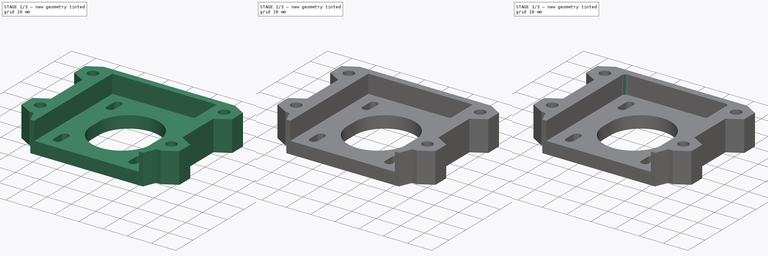
[diagram: build sequence overview — one tinted view per stage of 3, left to right]
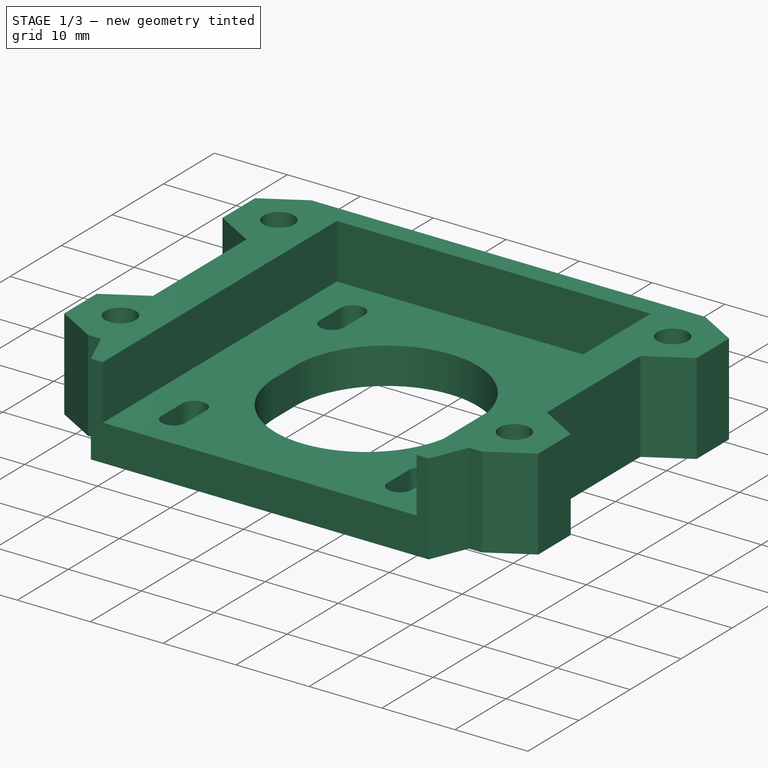
[diagram: stage 1 of 3 — iso view after this stage's code; geometry added in this stage tinted green]
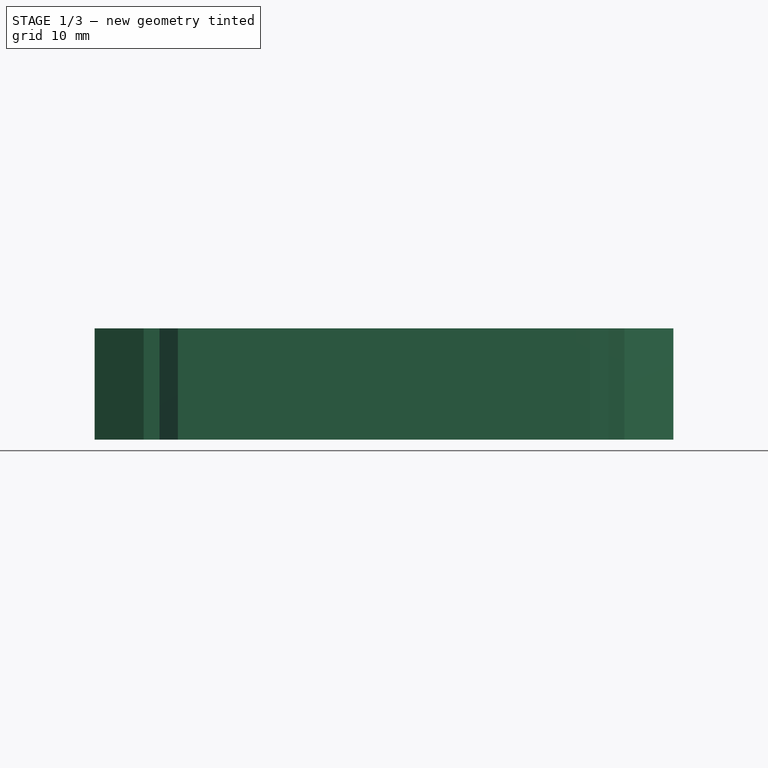
[diagram: stage 1 of 3 — front view after this stage's code; geometry added in this stage tinted green]
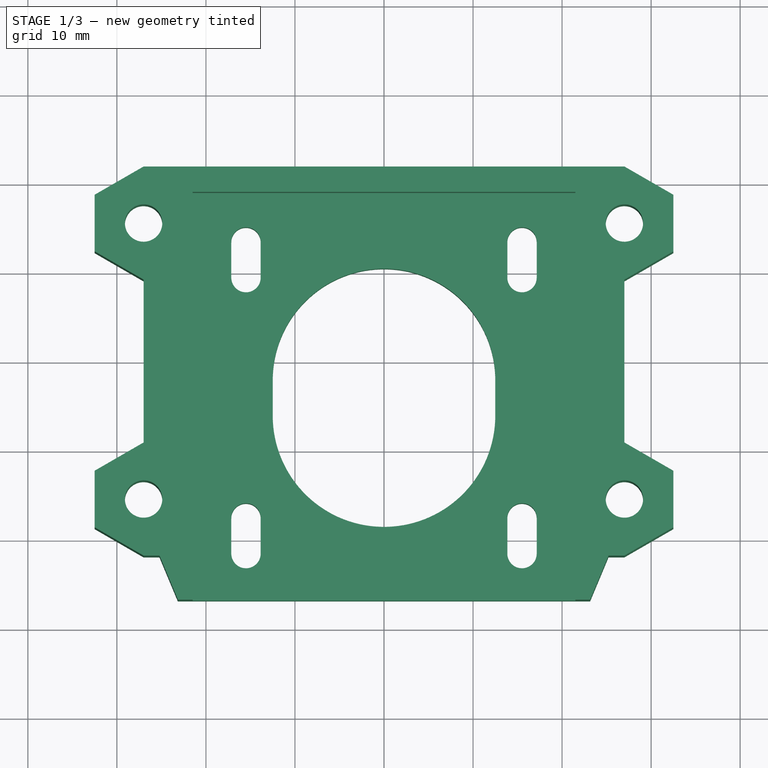
[diagram: stage 1 of 3 — top view after this stage's code; geometry added in this stage tinted green]
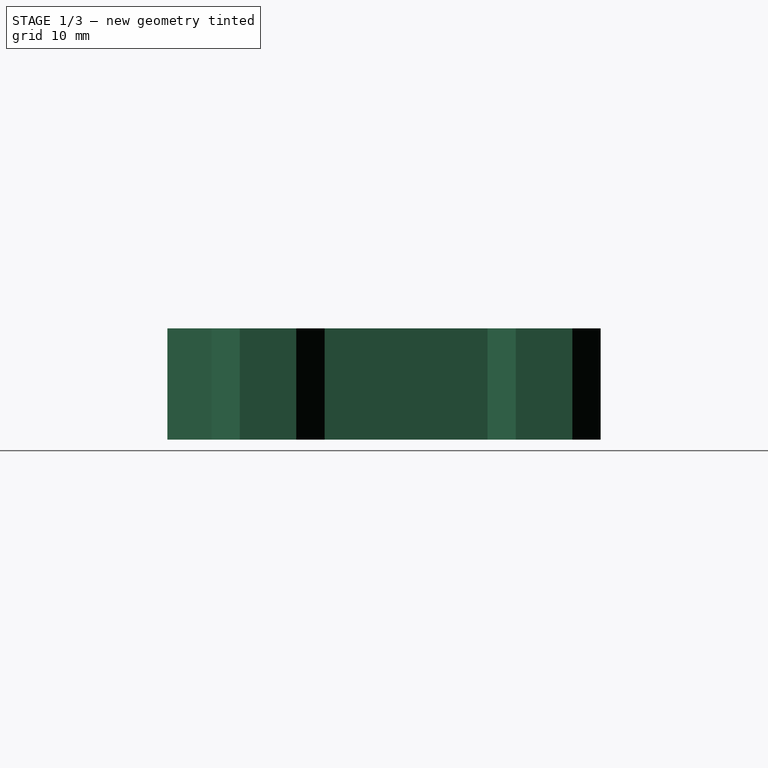
[diagram: stage 1 of 3 — right view after this stage's code; geometry added in this stage tinted green]
FCSTD DOCUMENT  (FreeCAD 0.19R24276 (Git))
Label: Base_motor_bracket
License: All rights reserved
LicenseURL: http://en.wikipedia.org/wiki/All_rights_reserved
objects: Sketcher::SketchObject×4, PartDesign::Pad×2, PartDesign::Pocket×2, PartDesign::Fillet×1, PartDesign::Body×1
note: 15 computed .brp shape members not serialized (recipe doc carries the construction recipe); baked Part::Feature solids carry a one-line shape summary decoded from their .brp

FEATURE [Sketcher::SketchObject] Sketch
  FullyConstrained = true
  MapMode = 5
  Support = -> [XY_Plane]
  sketch-geometry (68):
    g0: LineSegment StartX=-27 StartY=15.5 StartZ=0 EndX=27 EndY=15.5 EndZ=0
    g1: LineSegment StartX=27 StartY=15.5 StartZ=0 EndX=27 EndY=-15.5 EndZ=0
    g2: LineSegment StartX=27 StartY=-15.5 StartZ=0 EndX=-27 EndY=-15.5 EndZ=0
    g3: LineSegment StartX=-27 StartY=-15.5 StartZ=0 EndX=-27 EndY=15.5 EndZ=0
    g4: Circle CenterX=-27 CenterY=15.5 CenterZ=0 NormalX=0 NormalY=0 NormalZ=1 AngleXU=0 Radius=2.1
    g5: Circle CenterX=-27 CenterY=-15.5 CenterZ=0 NormalX=0 NormalY=0 NormalZ=1 AngleXU=0 Radius=2.1
    g6: Circle CenterX=27 CenterY=15.5 CenterZ=0 NormalX=0 NormalY=0 NormalZ=1 AngleXU=0 Radius=2.1
    g7: Circle CenterX=27 CenterY=-15.5 CenterZ=0 NormalX=0 NormalY=0 NormalZ=1 AngleXU=0 Radius=2.1
    g8: LineSegment StartX=-23.15 StartY=-26.8 StartZ=0 EndX=23.15 EndY=-26.8 EndZ=0
    g9: LineSegment StartX=27 StartY=21.8509 StartZ=0 EndX=-27 EndY=21.8509 EndZ=0
    g10: LineSegment StartX=-27 StartY=-21.8509 StartZ=0 EndX=-21.5 EndY=-18.6754 EndZ=0
    g11: LineSegment StartX=-21.5 StartY=-18.6754 StartZ=0 EndX=-21.5 EndY=-12.3246 EndZ=0
    g12: LineSegment StartX=-21.5 StartY=-12.3246 StartZ=0 EndX=-27 EndY=-9.14915 EndZ=0
    g13: LineSegment StartX=-27 StartY=-9.14915 StartZ=0 EndX=-32.5 EndY=-12.3246 EndZ=0
    g14: LineSegment StartX=-32.5 StartY=-12.3246 StartZ=0 EndX=-32.5 EndY=-18.6754 EndZ=0
    g15: LineSegment StartX=-32.5 StartY=-18.6754 StartZ=0 EndX=-27 EndY=-21.8509 EndZ=0
    g16: Circle CenterX=-27 CenterY=-15.5 CenterZ=0 NormalX=0 NormalY=0 NormalZ=1 AngleXU=0 Radius=6.35085
    g17: LineSegment StartX=-21.5 StartY=12.3246 StartZ=0 EndX=-21.5 EndY=18.6754 EndZ=0
    g18: LineSegment StartX=-21.5 StartY=18.6754 StartZ=0 EndX=-27 EndY=21.8509 EndZ=0
    g19: LineSegment StartX=-27 StartY=21.8509 StartZ=0 EndX=-32.5 EndY=18.6754 EndZ=0
    g20: LineSegment StartX=-32.5 StartY=18.6754 StartZ=0 EndX=-32.5 EndY=12.3246 EndZ=0
    g21: LineSegment StartX=-32.5 StartY=12.3246 StartZ=0 EndX=-27 EndY=9.14915 EndZ=0
    g22: LineSegment StartX=-27 StartY=9.14915 StartZ=0 EndX=-21.5 EndY=12.3246 EndZ=0
    g23: Circle CenterX=-27 CenterY=15.5 CenterZ=0 NormalX=0 NormalY=0 NormalZ=1 AngleXU=0 Radius=6.35085
    g24: LineSegment StartX=27 StartY=9.14915 StartZ=0 EndX=32.5 EndY=12.3246 EndZ=0
    g25: LineSegment StartX=32.5 StartY=12.3246 StartZ=0 EndX=32.5 EndY=18.6754 EndZ=0
    g26: LineSegment StartX=32.5 StartY=18.6754 StartZ=0 EndX=27 EndY=21.8509 EndZ=0
    g27: LineSegment StartX=27 StartY=21.8509 StartZ=0 EndX=21.5 EndY=18.6754 EndZ=0
    g28: LineSegment StartX=21.5 StartY=18.6754 StartZ=0 EndX=21.5 EndY=12.3246 EndZ=0
    g29: LineSegment StartX=21.5 StartY=12.3246 StartZ=0 EndX=27 EndY=9.14915 EndZ=0
    g30: Circle CenterX=27 CenterY=15.5 CenterZ=0 NormalX=0 NormalY=0 NormalZ=1 AngleXU=0 Radius=6.35085
    g31: LineSegment StartX=32.5 StartY=-12.3246 StartZ=0 EndX=27 EndY=-9.14915 EndZ=0
    g32: LineSegment StartX=27 StartY=-9.14915 StartZ=0 EndX=21.5 EndY=-12.3246 EndZ=0
    g33: LineSegment StartX=21.5 StartY=-12.3246 StartZ=0 EndX=21.5 EndY=-18.6754 EndZ=0
    g34: LineSegment StartX=21.5 StartY=-18.6754 StartZ=0 EndX=27 EndY=-21.8509 EndZ=0
    g35: LineSegment StartX=27 StartY=-21.8509 StartZ=0 EndX=32.5 EndY=-18.6754 EndZ=0
    g36: LineSegment StartX=32.5 StartY=-18.6754 StartZ=0 EndX=32.5 EndY=-12.3246 EndZ=0
    g37: Circle CenterX=27 CenterY=-15.5 CenterZ=0 NormalX=0 NormalY=0 NormalZ=1 AngleXU=0 Radius=6.35085
    g38: LineSegment StartX=-25.22 StartY=-21.8509 StartZ=0 EndX=-23.15 EndY=-26.8 EndZ=0
    g39: LineSegment StartX=23.15 StartY=-26.8 StartZ=0 EndX=25.22 EndY=-21.8509 EndZ=0
    g40: LineSegment StartX=-27 StartY=-9.14915 StartZ=0 EndX=-27 EndY=9.14915 EndZ=0
    g41: LineSegment StartX=27 StartY=-9.14915 StartZ=0 EndX=27 EndY=9.14915 EndZ=0
    g42: ArcOfCircle CenterX=0 CenterY=-2 CenterZ=0 NormalX=0 NormalY=0 NormalZ=1 AngleXU=0 Radius=12.5 StartAngle=1e-16 EndAngle=3.14159
    g43: ArcOfCircle CenterX=-4e-16 CenterY=-6 CenterZ=0 NormalX=0 NormalY=0 NormalZ=1 AngleXU=0 Radius=12.5 StartAngle=3.14159 EndAngle=6.28319
    g44: LineSegment StartX=-12.5 StartY=-2 StartZ=0 EndX=-12.5 EndY=-6 EndZ=0
    g45: LineSegment StartX=12.5 StartY=-2 StartZ=0 EndX=12.5 EndY=-6 EndZ=0
    g46: ArcOfCircle CenterX=-15.5 CenterY=13.5 CenterZ=0 NormalX=0 NormalY=0 NormalZ=1 AngleXU=0 Radius=1.65 StartAngle=-9e-16 EndAngle=3.14159
    g47: ArcOfCircle CenterX=-15.5 CenterY=9.5 CenterZ=0 NormalX=0 NormalY=0 NormalZ=1 AngleXU=0 Radius=1.65 StartAngle=3.14159 EndAngle=6.28319
    g48: LineSegment StartX=-17.15 StartY=13.5 StartZ=0 EndX=-17.15 EndY=9.5 EndZ=0
    g49: LineSegment StartX=-13.85 StartY=13.5 StartZ=0 EndX=-13.85 EndY=9.5 EndZ=0
    g50: ArcOfCircle CenterX=15.5 CenterY=13.5 CenterZ=0 NormalX=0 NormalY=0 NormalZ=1 AngleXU=0 Radius=1.65 StartAngle=0 EndAngle=3.14159
    g51: ArcOfCircle CenterX=15.5 CenterY=9.5 CenterZ=0 NormalX=0 NormalY=0 NormalZ=1 AngleXU=0 Radius=1.65 StartAngle=3.14159 EndAngle=6.28319
    g52: LineSegment StartX=13.85 StartY=13.5 StartZ=0 EndX=13.85 EndY=9.5 EndZ=0
    g53: LineSegment StartX=17.15 StartY=13.5 StartZ=0 EndX=17.15 EndY=9.5 EndZ=0
    g54: ArcOfCircle CenterX=-15.5 CenterY=-17.5 CenterZ=0 NormalX=0 NormalY=0 NormalZ=1 AngleXU=0 Radius=1.65 StartAngle=-9e-16 EndAngle=3.14159
    g55: ArcOfCircle CenterX=-15.5 CenterY=-21.5 CenterZ=0 NormalX=0 NormalY=0 NormalZ=1 AngleXU=0 Radius=1.65 StartAngle=3.14159 EndAngle=6.28319
    g56: LineSegment StartX=-17.15 StartY=-17.5 StartZ=0 EndX=-17.15 EndY=-21.5 EndZ=0
    g57: LineSegment StartX=-13.85 StartY=-17.5 StartZ=0 EndX=-13.85 EndY=-21.5 EndZ=0
    g58: ArcOfCircle CenterX=15.5 CenterY=-17.5 CenterZ=0 NormalX=0 NormalY=0 NormalZ=1 AngleXU=0 Radius=1.65 StartAngle=2e-16 EndAngle=3.14159
    g59: ArcOfCircle CenterX=15.5 CenterY=-21.5 CenterZ=0 NormalX=0 NormalY=0 NormalZ=1 AngleXU=0 Radius=1.65 StartAngle=3.14159 EndAngle=6.28319
    g60: LineSegment StartX=13.85 StartY=-17.5 StartZ=0 EndX=13.85 EndY=-21.5 EndZ=0
    g61: LineSegment StartX=17.15 StartY=-17.5 StartZ=0 EndX=17.15 EndY=-21.5 EndZ=0
    g62: LineSegment StartX=-15.5 StartY=13.5 StartZ=0 EndX=15.5 EndY=13.5 EndZ=0
    g63: LineSegment StartX=15.5 StartY=13.5 StartZ=0 EndX=15.5 EndY=-17.5 EndZ=0
    g64: LineSegment StartX=15.5 StartY=-17.5 StartZ=0 EndX=-15.5 EndY=-17.5 EndZ=0
    g65: LineSegment StartX=-15.5 StartY=-17.5 StartZ=0 EndX=-15.5 EndY=13.5 EndZ=0
    g66: LineSegment StartX=-27 StartY=-21.8509 StartZ=0 EndX=-25.22 EndY=-21.8509 EndZ=0
    g67: LineSegment StartX=27 StartY=-21.8509 StartZ=0 EndX=25.22 EndY=-21.8509 EndZ=0
  constraints (160):
    c: Coincident(g0,g1)
    c: Coincident(g1,g2)
    c: Coincident(g2,g3)
    c: Coincident(g3,g0)
    c: Horizontal(g0)
    c: Horizontal(g2)
    c: Vertical(g1)
    c: Vertical(g3)
    c: Symmetric(g0,g1,g-1)
    c: DistanceX(g2,g2) = 54
    c: Coincident(g4,g0)
    c: Coincident(g5,g2)
    c: Coincident(g6,g0)
    c: Coincident(g7,g1)
    c: Equal(g4,g5)
    c: Equal(g5,g7)
    c: Equal(g7,g6)
    c: Radius(g6) = 2.1
    c: Symmetric(g8,g8,g-2)
    c: Symmetric(g9,g9,g-2)
    c: DistanceX(g8,g8) = 46.3
    c: Coincident(g10,g11)
    c: Coincident(g11,g12)
    c: Coincident(g12,g13)
    c: Coincident(g13,g14)
    c: Coincident(g14,g15)
    c: Coincident(g15,g10)
    c: Equal(g10, g11-g15) x5
    c: PointOnObject(g10,g16)
    c: PointOnObject(g11,g16)
    c: PointOnObject(g12,g16)
    c: PointOnObject(g13,g16)
    c: PointOnObject(g14,g16)
    c: PointOnObject(g15,g16)
    c: Coincident(g16,g5)
    c: Coincident(g17,g18)
    c: Coincident(g18,g19)
    c: Coincident(g19,g20)
    c: Coincident(g20,g21)
    c: Coincident(g21,g22)
    c: Equal(g17, g18-g22) x5
    c: PointOnObject(g17,g23)
    c: PointOnObject(g18,g23)
    c: PointOnObject(g19,g23)
    c: PointOnObject(g20,g23)
    c: PointOnObject(g21,g23)
    c: PointOnObject(g22,g23)
    c: Coincident(g23,g4)
    c: Coincident(g24,g25)
    c: Coincident(g25,g26)
    c: Coincident(g26,g27)
    c: Coincident(g27,g28)
    c: Coincident(g28,g29)
    c: Coincident(g29,g24)
    c: Equal(g24, g25-g29) x5
    c: PointOnObject(g24,g30)
    c: PointOnObject(g25,g30)
    c: PointOnObject(g26,g30)
    c: PointOnObject(g27,g30)
    c: PointOnObject(g28,g30)
    c: PointOnObject(g29,g30)
    c: Coincident(g30,g6)
    c: Coincident(g31,g32)
    c: Coincident(g32,g33)
    c: Coincident(g33,g34)
    c: Coincident(g34,g35)
    c: Coincident(g35,g36)
    c: Coincident(g36,g31)
    c: Equal(g31, g32-g36) x5
    c: PointOnObject(g31,g37)
    c: PointOnObject(g32,g37)
    c: PointOnObject(g33,g37)
    c: PointOnObject(g34,g37)
    c: PointOnObject(g35,g37)
    c: PointOnObject(g36,g37)
    c: Coincident(g37,g7)
    c: Equal(g16,g37)
    c: Equal(g30,g37)
    c: Equal(g23,g16)
    c: Coincident(g17,g22)
    c: Vertical(g17)
    c: Vertical(g28)
    c: Vertical(g33)
    c: Vertical(g14)
    c: Coincident(g38,g8)
    c: DistanceX(g38,g8) = 2.07
    c: Coincident(g8,g39)
    c: Coincident(g40,g13)
    c: Coincident(g40,g21)
    c: Coincident(g41,g31)
    c: Coincident(g41,g24)
    c: Coincident(g9,g26)
    c: Tangent(g42,g45) = 1.5708
    c: Tangent(g42,g44) = -1.5708
    c: Tangent(g44,g43) = -1.5708
    c: Tangent(g45,g43) = 1.5708
    c: Vertical(g44)
    c: Equal(g42,g43)
    c: PointOnObject(g42,g-2)
    c: DistanceY(g8,g42) = 24.8
    c: DistanceY(g45,g45) = 4
    c: Tangent(g46,g49) = 1.5708
    c: Tangent(g46,g48) = -1.5708
    c: Tangent(g48,g47) = -1.5708
    c: Tangent(g49,g47) = 1.5708
    c: Vertical(g48)
    c: Equal(g46,g47)
    c: Tangent(g50,g53) = 1.5708
    c: Tangent(g50,g52) = -1.5708
    c: Tangent(g52,g51) = -1.5708
    c: Tangent(g53,g51) = 1.5708
    c: Vertical(g52)
    c: Equal(g50,g51)
    c: Tangent(g54,g57) = 1.5708
    c: Tangent(g54,g56) = -1.5708
    c: Tangent(g56,g55) = -1.5708
    c: Tangent(g57,g55) = 1.5708
    c: Vertical(g56)
    c: Equal(g54,g55)
    c: Tangent(g58,g61) = 1.5708
    c: Tangent(g58,g60) = -1.5708
    c: Tangent(g60,g59) = -1.5708
    c: Tangent(g61,g59) = 1.5708
    c: Vertical(g60)
    c: Equal(g58,g59)
    c: Coincident(g62,g63)
    c: Coincident(g63,g64)
    c: Coincident(g64,g65)
    c: Coincident(g65,g62)
    c: Horizontal(g62)
    c: Horizontal(g64)
    c: Vertical(g63)
    c: Vertical(g65)
    c: Coincident(g62,g46)
    c: Coincident(g63,g58)
    c: Coincident(g50,g62)
    c: Radius(g50) = 1.65
    c: DistanceY(g53,g53) = 4
    c: Equal(g46,g50)
    c: Equal(g50,g54)
    c: Equal(g54,g58)
    c: Coincident(g64,g54)
    c: Equal(g57,g60)
    c: Equal(g60,g49)
    c: Equal(g49,g52)
    c: DistanceX(g62,g62) = 31
    c: DistanceY(g63,g63) = 31
    c: Symmetric(g46,g58,g42)
    c: Radius(g42) = 12.5
    c: DistanceY(g8,g7) = 11.3
    c: Coincident(g66,g15)
    c: Coincident(g38,g66)
    c: Horizontal(g66)
    c: Coincident(g67,g35)
    c: Coincident(g67,g39)
    c: Horizontal(g67)
    c: Equal(g66,g67)
    c: DistanceX(g13,g11) = 11
    c: DistanceY(g7,g6) = 31
    c: DistanceY(g8,g9) = 48.6509
FEATURE [PartDesign::Pad] Pad
  Direction = (1,1,1)
  Length = 12.5
  Length2 = 100
  Profile = -> Sketch
  Type = 0
FEATURE [Sketcher::SketchObject] Sketch001
  ExternalGeometry = -> [Pad]
  FullyConstrained = true
  MapMode = 5
  Placement = pos=(0,0,12.5) rot=(0,0,1;0rad)
  Support = -> [Pad]
  sketch-geometry (4):
    g0: LineSegment StartX=-21.5 StartY=19 StartZ=0 EndX=21.5 EndY=19 EndZ=0
    g1: LineSegment StartX=21.5 StartY=19 StartZ=0 EndX=21.5 EndY=-26.8 EndZ=0
    g2: LineSegment StartX=21.5 StartY=-26.8 StartZ=0 EndX=-21.5 EndY=-26.8 EndZ=0
    g3: LineSegment StartX=-21.5 StartY=-26.8 StartZ=0 EndX=-21.5 EndY=19 EndZ=0
  constraints (11):
    c: Coincident(g0,g1)
    c: Coincident(g1,g2)
    c: Coincident(g2,g3)
    c: Coincident(g3,g0)
    c: Horizontal(g2)
    c: Vertical(g1)
    c: Vertical(g3)
    c: DistanceX(g0,g0) = 43
    c: DistanceY(g1,g1) = 45.8
    c: Symmetric(g0,g0,g-2)
    c: PointOnObject(g1,g-3)
FEATURE [PartDesign::Pocket] Pocket
  BaseFeature = -> Pad
  Length = 7.5
  Length2 = 100
  Profile = -> Sketch001
  Type = 0
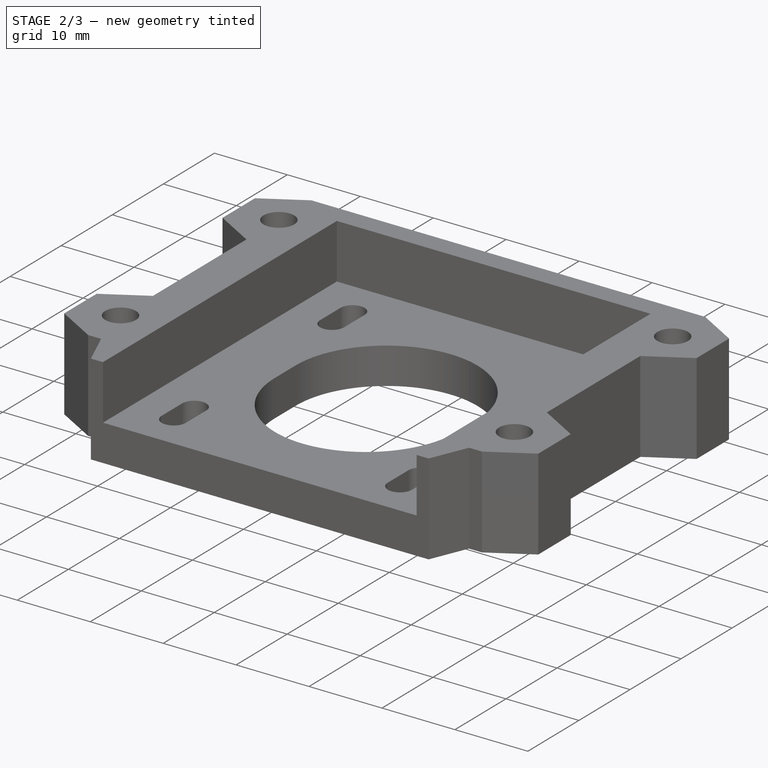
[diagram: stage 2 of 3 — iso view after this stage's code; geometry added in this stage tinted green]
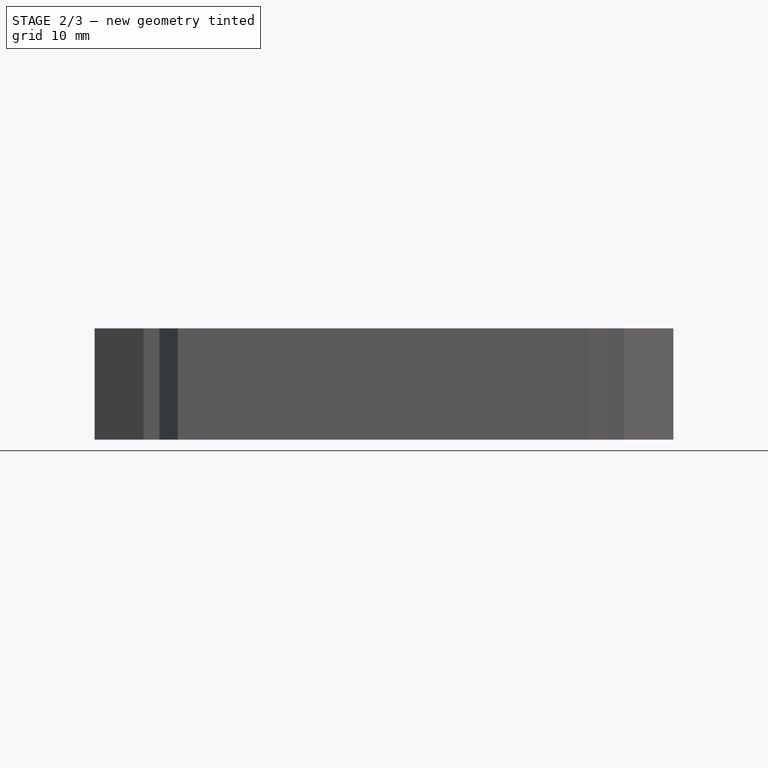
[diagram: stage 2 of 3 — front view after this stage's code; geometry added in this stage tinted green]
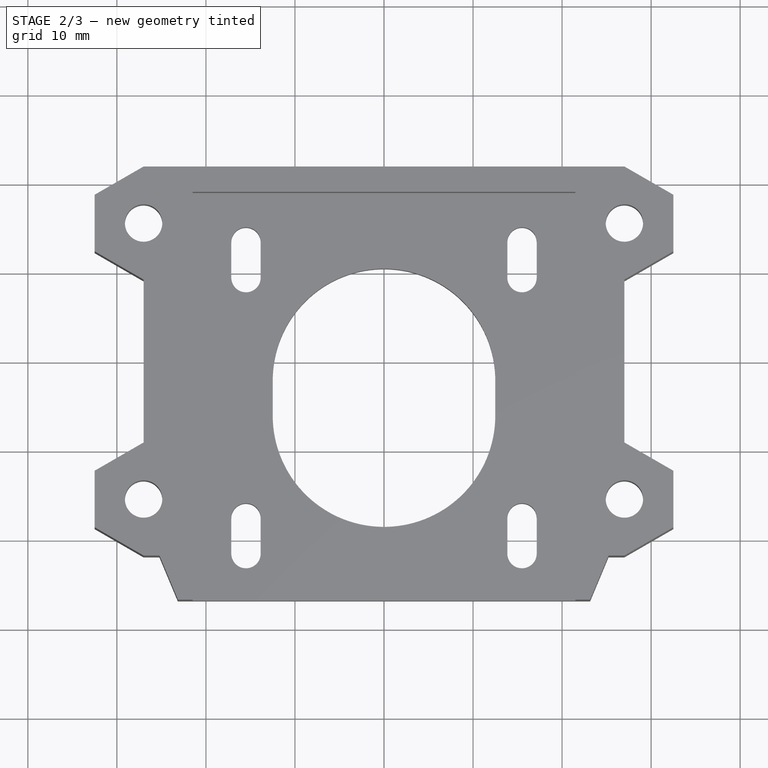
[diagram: stage 2 of 3 — top view after this stage's code; geometry added in this stage tinted green]
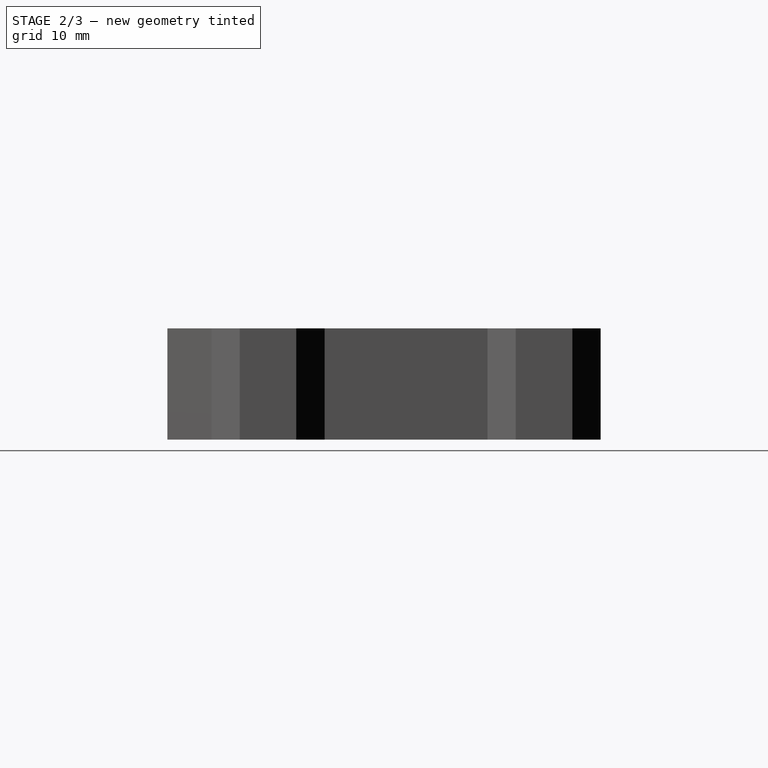
[diagram: stage 2 of 3 — right view after this stage's code; geometry added in this stage tinted green]
FEATURE [Sketcher::SketchObject] Sketch002
  ExternalGeometry = -> [Pocket]
  FullyConstrained = true
  MapMode = 5
  Placement = pos=(0,0,0) rot=(1,0,0;3.14159rad)
  Support = -> [Pocket]
  sketch-geometry (28):
    g0: LineSegment StartX=-23.5 StartY=13.4793 StartZ=0 EndX=-23.5 EndY=17.5207 EndZ=0
    g1: LineSegment StartX=-23.5 StartY=17.5207 StartZ=0 EndX=-27 EndY=19.5415 EndZ=0
    g2: LineSegment StartX=-27 StartY=19.5415 StartZ=0 EndX=-30.5 EndY=17.5207 EndZ=0
    g3: LineSegment StartX=-30.5 StartY=17.5207 StartZ=0 EndX=-30.5 EndY=13.4793 EndZ=0
    g4: LineSegment StartX=-30.5 StartY=13.4793 StartZ=0 EndX=-27 EndY=11.4585 EndZ=0
    g5: LineSegment StartX=-27 StartY=11.4585 StartZ=0 EndX=-23.5 EndY=13.4793 EndZ=0
    g6: Circle CenterX=-27 CenterY=15.5 CenterZ=0 NormalX=0 NormalY=0 NormalZ=1 AngleXU=0 Radius=4.04145
    g7: LineSegment StartX=-23.5 StartY=-17.5207 StartZ=0 EndX=-23.5 EndY=-13.4793 EndZ=0
    g8: LineSegment StartX=-23.5 StartY=-13.4793 StartZ=0 EndX=-27 EndY=-11.4585 EndZ=0
    g9: LineSegment StartX=-27 StartY=-11.4585 StartZ=0 EndX=-30.5 EndY=-13.4793 EndZ=0
    g10: LineSegment StartX=-30.5 StartY=-13.4793 StartZ=0 EndX=-30.5 EndY=-17.5207 EndZ=0
    g11: LineSegment StartX=-30.5 StartY=-17.5207 StartZ=0 EndX=-27 EndY=-19.5415 EndZ=0
    g12: LineSegment StartX=-27 StartY=-19.5415 StartZ=0 EndX=-23.5 EndY=-17.5207 EndZ=0
    g13: Circle CenterX=-27 CenterY=-15.5 CenterZ=0 NormalX=0 NormalY=0 NormalZ=1 AngleXU=0 Radius=4.04145
    g14: LineSegment StartX=30.5 StartY=-17.5207 StartZ=0 EndX=30.5 EndY=-13.4793 EndZ=0
    g15: LineSegment StartX=30.5 StartY=-13.4793 StartZ=0 EndX=27 EndY=-11.4585 EndZ=0
    g16: LineSegment StartX=27 StartY=-11.4585 StartZ=0 EndX=23.5 EndY=-13.4793 EndZ=0
    g17: LineSegment StartX=23.5 StartY=-13.4793 StartZ=0 EndX=23.5 EndY=-17.5207 EndZ=0
    g18: LineSegment StartX=23.5 StartY=-17.5207 StartZ=0 EndX=27 EndY=-19.5415 EndZ=0
    g19: LineSegment StartX=27 StartY=-19.5415 StartZ=0 EndX=30.5 EndY=-17.5207 EndZ=0
    g20: Circle CenterX=27 CenterY=-15.5 CenterZ=0 NormalX=0 NormalY=0 NormalZ=1 AngleXU=0 Radius=4.04145
    g21: LineSegment StartX=30.5 StartY=13.4793 StartZ=0 EndX=30.5 EndY=17.5207 EndZ=0
    g22: LineSegment StartX=30.5 StartY=17.5207 StartZ=0 EndX=27 EndY=19.5415 EndZ=0
    g23: LineSegment StartX=27 StartY=19.5415 StartZ=0 EndX=23.5 EndY=17.5207 EndZ=0
    g24: LineSegment StartX=23.5 StartY=17.5207 StartZ=0 EndX=23.5 EndY=13.4793 EndZ=0
    g25: LineSegment StartX=23.5 StartY=13.4793 StartZ=0 EndX=27 EndY=11.4585 EndZ=0
    g26: LineSegment StartX=27 StartY=11.4585 StartZ=0 EndX=30.5 EndY=13.4793 EndZ=0
    g27: Circle CenterX=27 CenterY=15.5 CenterZ=0 NormalX=0 NormalY=0 NormalZ=1 AngleXU=0 Radius=4.04145
  constraints (64):
    c: Coincident(g0,g1)
    c: Coincident(g1,g2)
    c: Coincident(g2,g3)
    c: Coincident(g3,g4)
    c: Coincident(g4,g5)
    c: Coincident(g5,g0)
    c: Equal(g0, g1-g5) x5
    c: PointOnObject(g0,g6)
    c: PointOnObject(g1,g6)
    c: PointOnObject(g2,g6)
    c: PointOnObject(g3,g6)
    c: PointOnObject(g4,g6)
    c: PointOnObject(g5,g6)
    c: Coincident(g6,g-3)
    c: Coincident(g7,g8)
    c: Coincident(g8,g9)
    c: Coincident(g9,g10)
    c: Coincident(g10,g11)
    c: Coincident(g11,g12)
    c: Coincident(g12,g7)
    c: Equal(g7, g8-g12) x5
    c: PointOnObject(g7,g13)
    c: PointOnObject(g8,g13)
    c: PointOnObject(g9,g13)
    c: PointOnObject(g10,g13)
    c: PointOnObject(g11,g13)
    c: PointOnObject(g12,g13)
    c: Coincident(g13,g-4)
    c: Coincident(g14,g15)
    c: Coincident(g15,g16)
    c: Coincident(g16,g17)
    c: Coincident(g17,g18)
    c: Coincident(g18,g19)
    c: Coincident(g19,g14)
    c: Equal(g14, g15-g19) x5
    c: PointOnObject(g14,g20)
    c: PointOnObject(g15,g20)
    c: PointOnObject(g16,g20)
    c: PointOnObject(g17,g20)
    c: PointOnObject(g18,g20)
    c: PointOnObject(g19,g20)
    c: Coincident(g20,g-5)
    c: Coincident(g21,g22)
    c: Coincident(g22,g23)
    c: Coincident(g23,g24)
    c: Coincident(g24,g25)
    c: Coincident(g25,g26)
    c: Coincident(g26,g21)
    c: Equal(g21, g22-g26) x5
    c: PointOnObject(g21,g27)
    c: PointOnObject(g22,g27)
    c: PointOnObject(g23,g27)
    c: PointOnObject(g24,g27)
    c: PointOnObject(g25,g27)
    c: PointOnObject(g26,g27)
    c: Coincident(g27,g-6)
    c: Equal(g27,g20)
    c: Equal(g20,g13)
    c: Equal(g13,g6)
    c: Vertical(g3)
    c: DistanceX(g2,g0) = 7
    c: Vertical(g10)
    c: Vertical(g17)
    c: Vertical(g24)
FEATURE [PartDesign::Pocket] Pocket001
  BaseFeature = -> Pocket
  Length = 4
  Length2 = 100
  Profile = -> Sketch002
  Type = 0
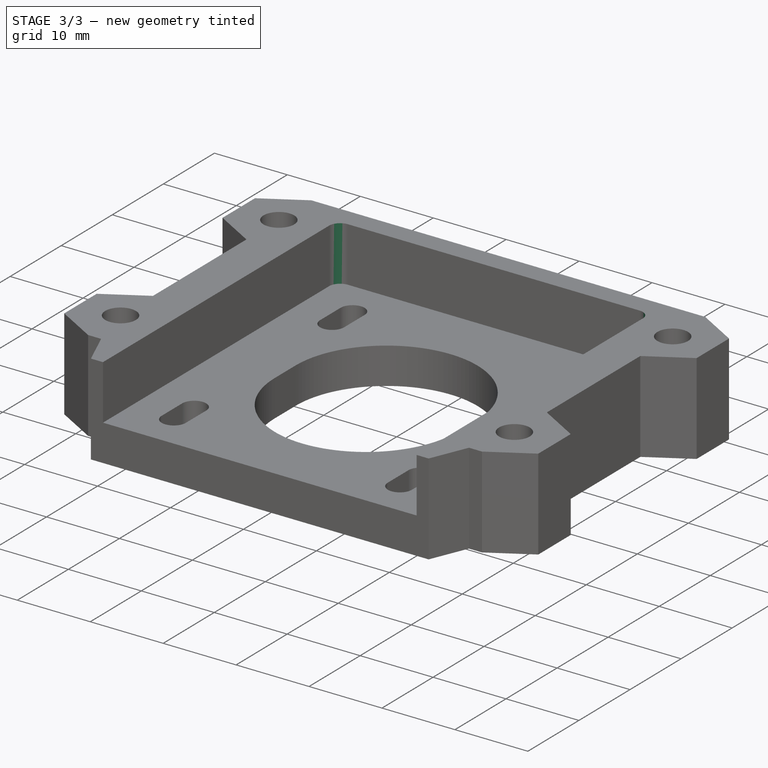
[diagram: stage 3 of 3 — iso view after this stage's code; geometry added in this stage tinted green]
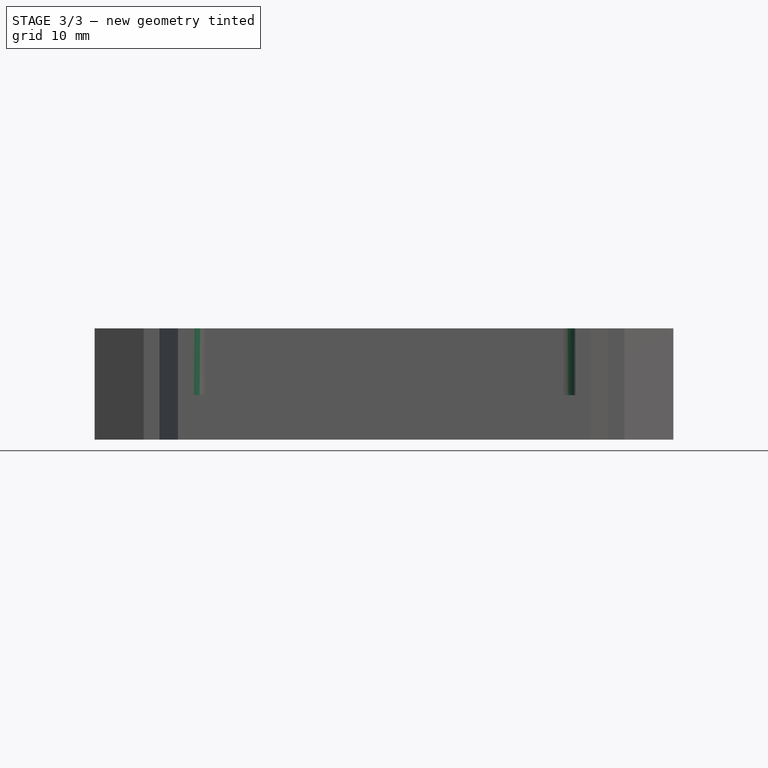
[diagram: stage 3 of 3 — front view after this stage's code; geometry added in this stage tinted green]
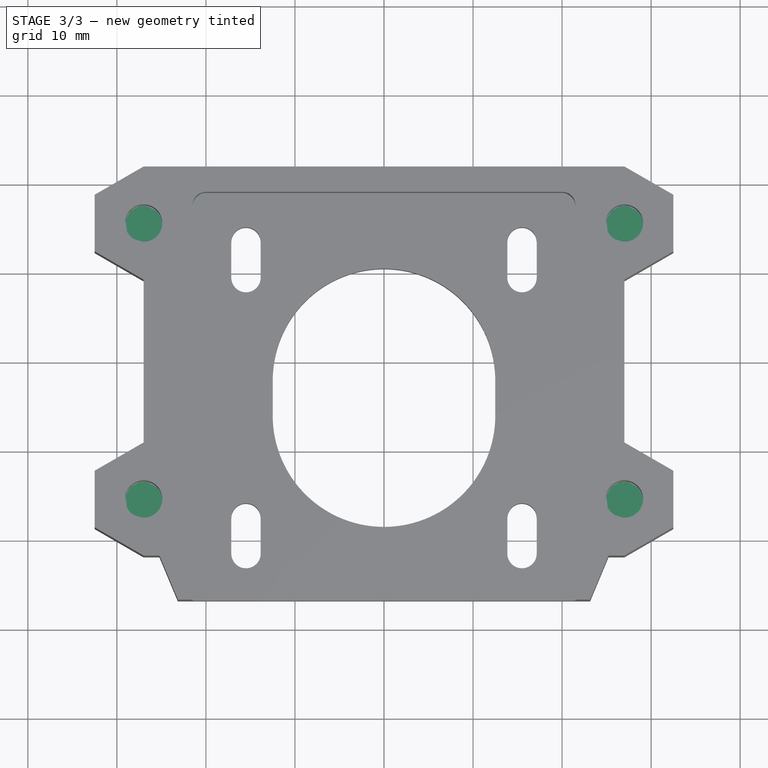
[diagram: stage 3 of 3 — top view after this stage's code; geometry added in this stage tinted green]
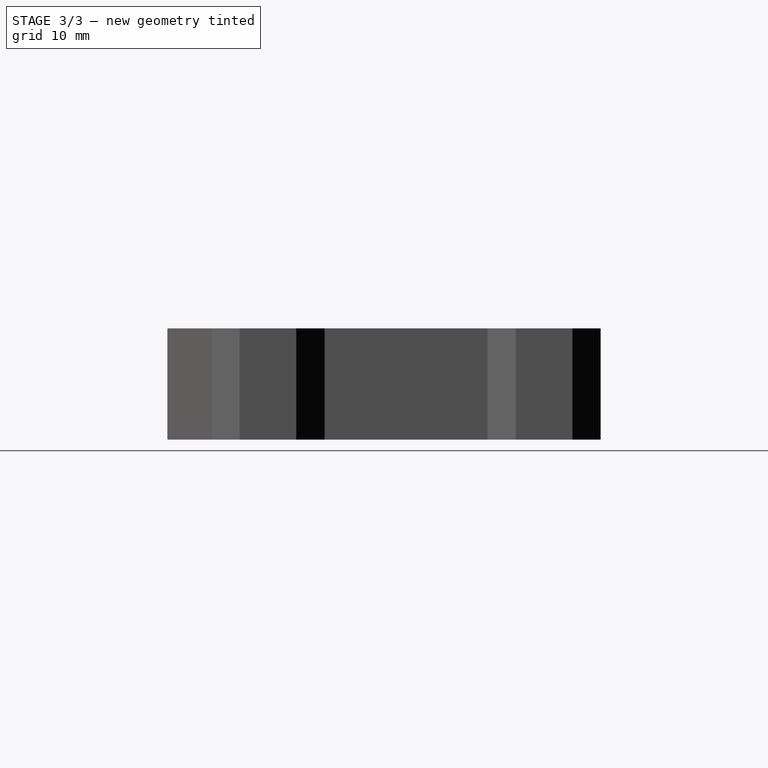
[diagram: stage 3 of 3 — right view after this stage's code; geometry added in this stage tinted green]
FEATURE [PartDesign::Fillet] Fillet
  Base = -> Pocket001 [Edge206,Edge204]
  BaseFeature = -> Pocket001
  Radius = 1.5
  SupportTransform = false
FEATURE [Sketcher::SketchObject] Sketch003
  ExternalGeometry = -> [Fillet]
  FullyConstrained = true
  MapMode = 5
  Placement = pos=(0,0,4) rot=(1,0,0;3.14159rad)
  Support = -> [Fillet]
  sketch-geometry (4):
    g0: Circle CenterX=-27 CenterY=15.5 CenterZ=0 NormalX=0 NormalY=0 NormalZ=1 AngleXU=0 Radius=2.1
    g1: Circle CenterX=27 CenterY=15.5 CenterZ=0 NormalX=0 NormalY=0 NormalZ=1 AngleXU=0 Radius=2.1
    g2: Circle CenterX=-27 CenterY=-15.5 CenterZ=0 NormalX=0 NormalY=0 NormalZ=1 AngleXU=0 Radius=2.1
    g3: Circle CenterX=27 CenterY=-15.5 CenterZ=0 NormalX=0 NormalY=0 NormalZ=1 AngleXU=0 Radius=2.1
  constraints (8):
    c: Coincident(g0,g-3)
    c: Coincident(g1,g-4)
    c: Coincident(g2,g-5)
    c: Coincident(g3,g-6)
    c: Equal(g0,g2)
    c: Equal(g2,g3)
    c: Equal(g3,g1)
    c: Radius(g1) = 2.1
FEATURE [PartDesign::Pad] Pad001
  BaseFeature = -> Fillet
  Direction = (1,1,1)
  Length = 0.4
  Length2 = 100
  Profile = -> Sketch003
  Reversed = true
  Type = 0
FEATURE [PartDesign::Body] Body
  Group = -> [Sketch,Pad,Sketch001,Pocket,Sketch002,Pocket001,Fillet,Sketch003,Pad001]
  Origin = -> Origin
  Tip = -> Pad001
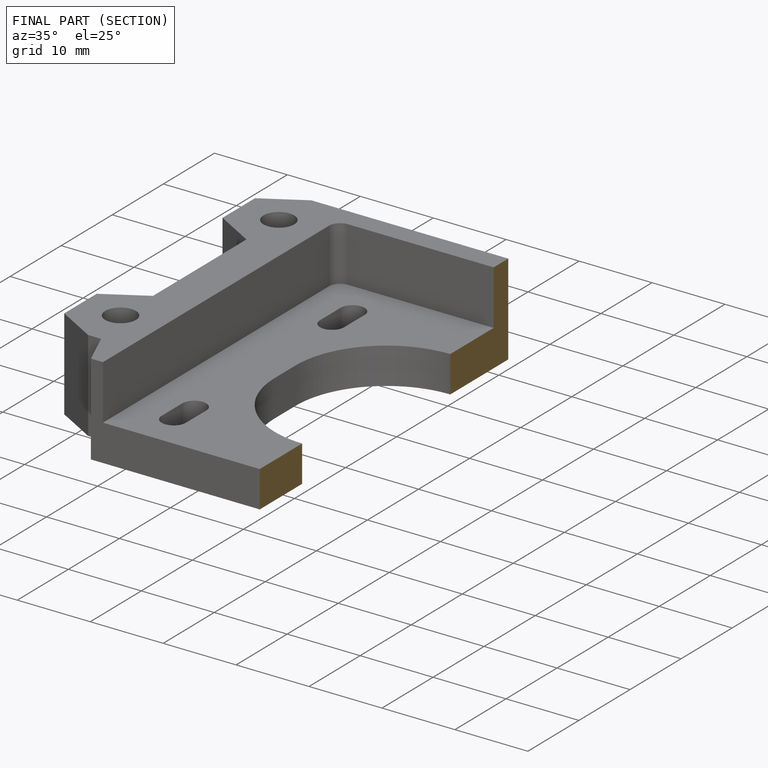
[diagram: finished part — half-section view (interior)]
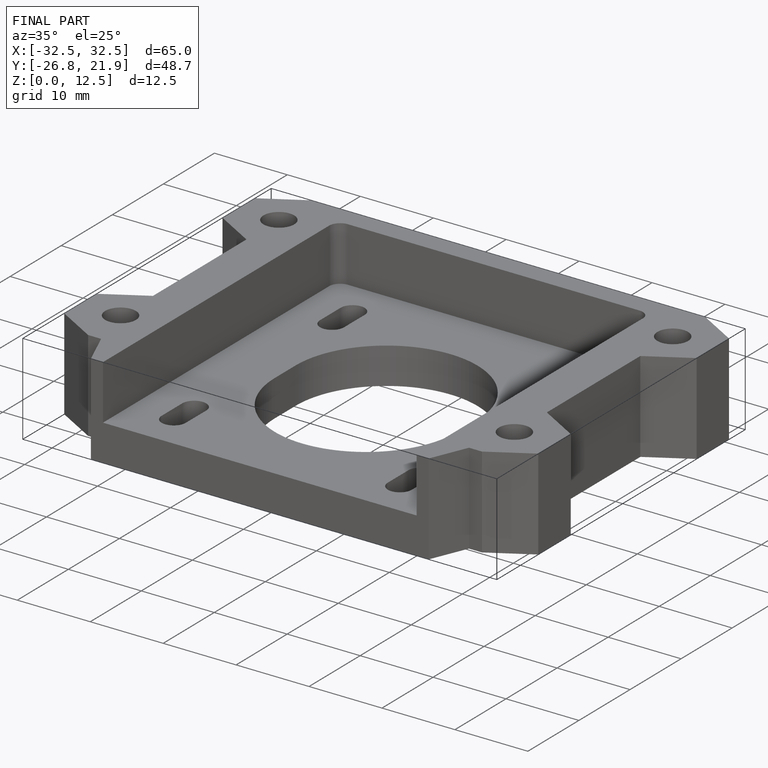
[diagram: finished part — iso view with bounding-box wireframe]
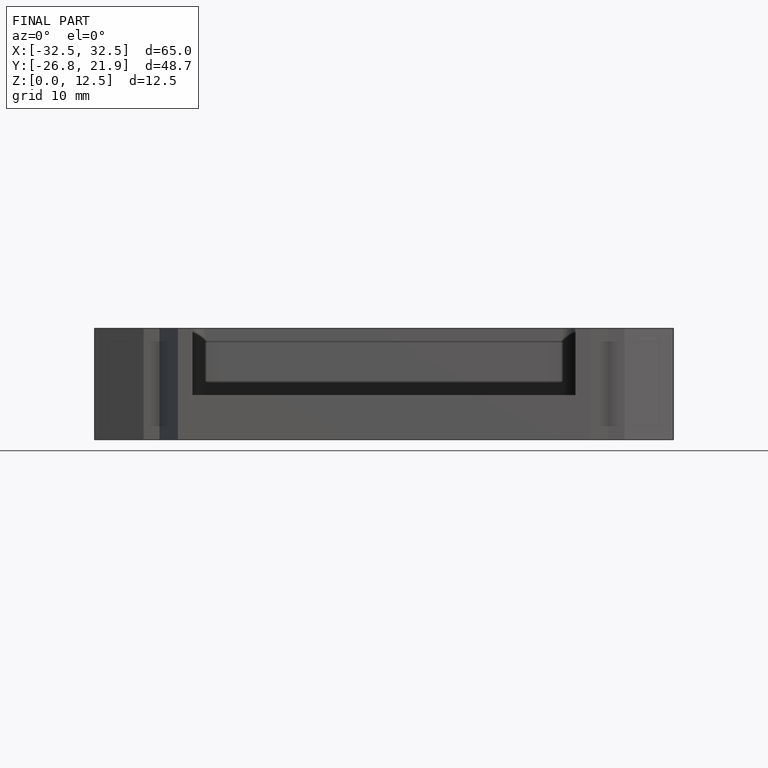
[diagram: finished part — front view with bounding-box wireframe]
